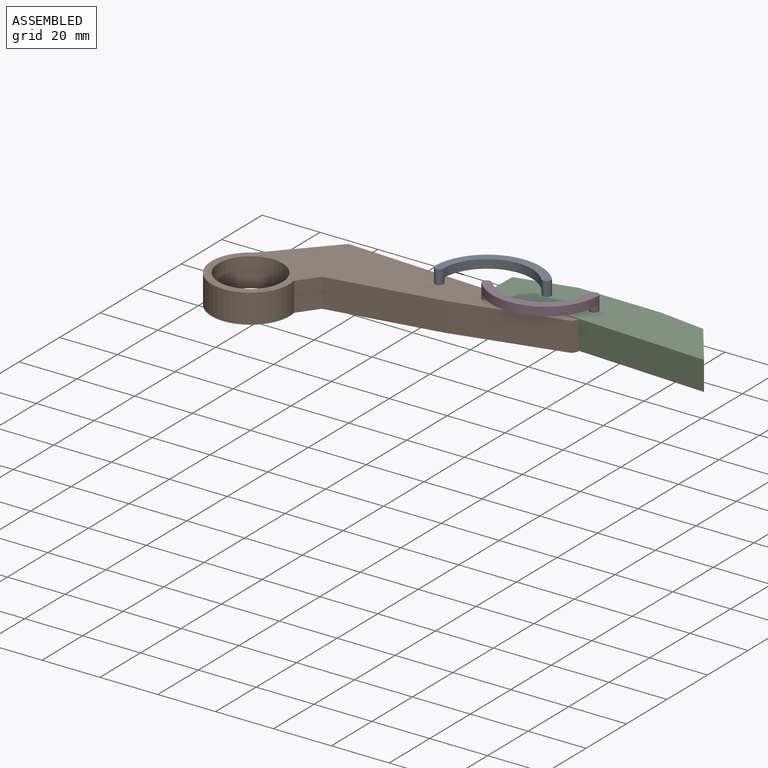
[diagram: assembled view]
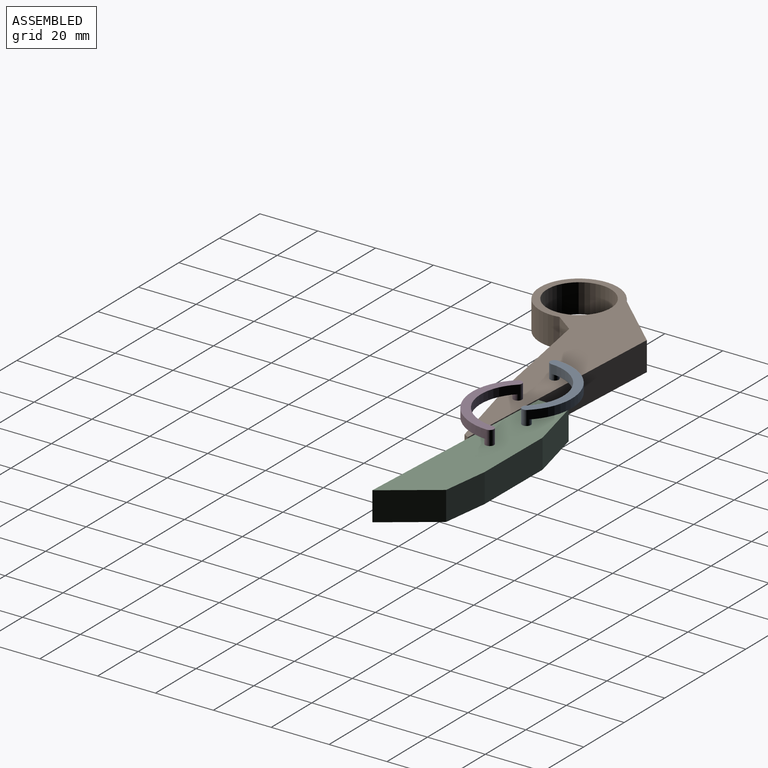
[diagram: assembled view, second angle]
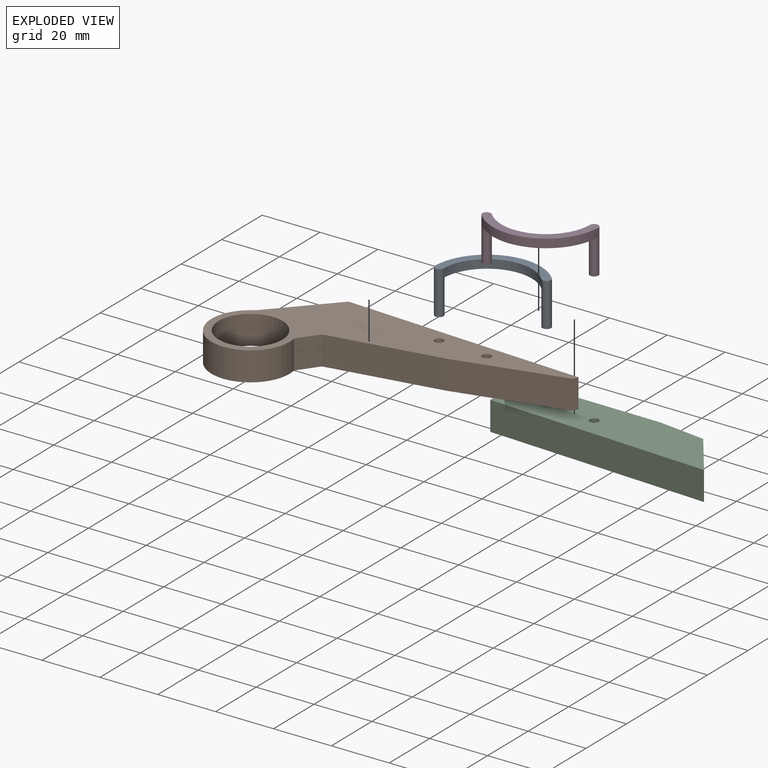
[diagram: exploded view]
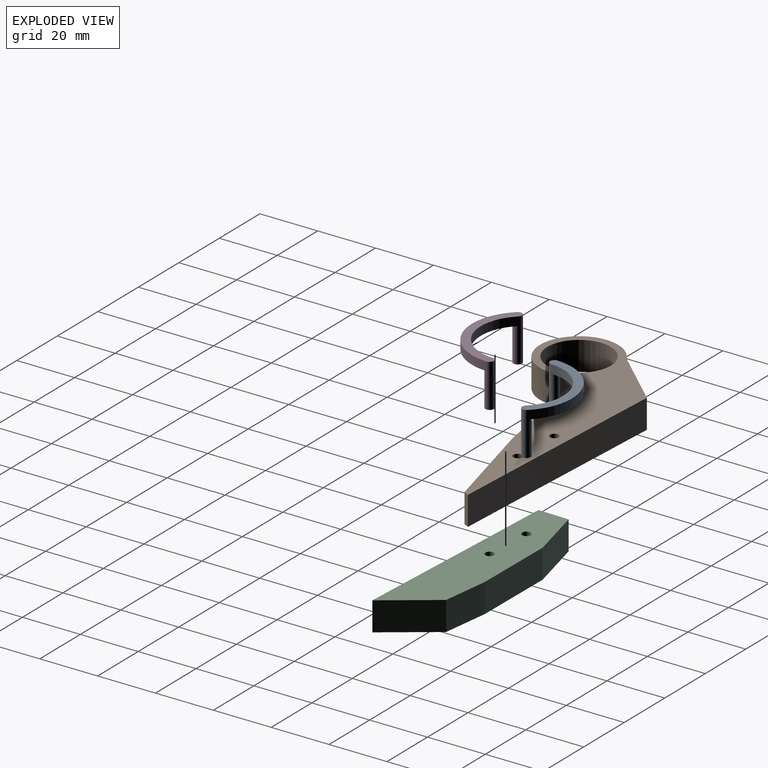
[diagram: exploded view, second angle]
ASSEMBLY  parts=4 mates=4
PART A: 8 faces, bbox 31.1x21.3x15 mm
  f0: cylinder r=1.5mm len=15mm, axis (0,0,-1), area 127.2mm2, adj f1,f3,f4,f5,f6
  f1: cylinder r=18.5mm len=30.63mm, axis (0,0,-1), area 131.2mm2, adj f0,f2,f4,f5
  f2: cylinder r=1.5mm len=15mm, axis (0,0,-1), area 127.2mm2, adj f1,f3,f4,f5,f7
  f3: cylinder r=15.5mm len=25.67mm, axis (0,0,-1), area 109.9mm2, adj f0,f2,f4,f5
  f4: plane 31.15x21.33mm, normal (0,0,1), area 127.6mm2, adj f0,f1,f2,f3
  f5: plane 30.63x19.95mm, normal (0,0,-1), area 113.5mm2, adj f0,f1,f2,f3
  f6: plane 3x3mm, normal (0,0,-1), area 7.1mm2, adj f0
  f7: plane 3x3mm, normal (0,0,-1), area 7.1mm2, adj f2
PART B: 13 faces, bbox 103.4x52.7x10 mm
  f0: plane 35.36x14.03mm, normal (0.37,-0.93,0), area 380.4mm2, adj f1,f8,f11,f12
  f1: cylinder r=18.5mm len=10mm, axis (0,0,1), area 21.4mm2, adj f0,f2,f11,f12
  f2: plane 31.7x10mm, normal (-0.08,1,0), area 318mm2, adj f1,f3,f11,f12
  f3: plane 50.53x10mm, normal (-0.08,1,0), area 506.7mm2, adj f2,f4,f11,f12
  f4: plane 21.99x15.58mm, normal (-0.82,0.58,0), area 269.5mm2, adj f3,f5,f11,f12
  f5: cylinder r=13.5mm len=27mm, axis (0,0,1), area 594.3mm2, adj f4,f6,f11,f12
  f6: plane 10x7.32mm, normal (0.88,-0.48,0), area 83.6mm2, adj f5,f8,f11,f12
  f7: cylinder r=1.5mm len=10mm, axis (0,0,1), area 94.2mm2, adj f11,f12
  f8: plane 36.86x11.63mm, normal (0.3,-0.95,0), area 386.6mm2, adj f0,f6,f11,f12
  f9: cylinder r=1.5mm len=10mm, axis (0,0,1), area 94.2mm2, adj f11,f12
  f10: cylinder r=11mm len=22mm, axis (0,0,1), area 691.2mm2, adj f11,f12
  f11: plane 103.37x52.71mm, normal (0,0,-1), area 1470.3mm2, adj f0,f1,f2,f3,f4,f5,f6,f7
  f12: plane 103.37x52.71mm, normal (0,0,1), area 1470.3mm2, adj f0,f1,f2,f3,f4,f5,f6,f7
PART C: 11 faces, bbox 77.5x21.2x10 mm
  f0: plane 18.96x10mm, normal (-0.36,0.93,0), area 203.3mm2, adj f1,f7,f9,f10
  f1: plane 10.53x10mm, normal (-0.99,-0.1,0), area 105.9mm2, adj f0,f2,f9,f10
  f2: plane 36.99x10mm, normal (0.08,-1,0), area 371mm2, adj f1,f3,f9,f10
  f3: plane 39.44x10mm, normal (0.08,-1,0), area 395.6mm2, adj f2,f4,f9,f10
  f4: plane 15.29x14.23mm, normal (0.73,0.68,0), area 208.8mm2, adj f3,f5,f9,f10
  f5: plane 16.27x10mm, normal (0,1,0), area 162.7mm2, adj f4,f7,f9,f10
  f6: cylinder r=1.5mm len=10mm, axis (0,0,1), area 94.2mm2, adj f9,f10
  f7: plane 28.05x10mm, normal (-0.12,0.99,0), area 282.6mm2, adj f0,f5,f9,f10
  f8: cylinder r=1.5mm len=10mm, axis (0,0,1), area 94.2mm2, adj f9,f10
  f9: plane 77.51x21.23mm, normal (0,0,-1), area 1108.4mm2, adj f0,f1,f2,f3,f4,f5,f6,f7
  f10: plane 77.51x21.23mm, normal (0,0,1), area 1108.4mm2, adj f0,f1,f2,f3,f4,f5,f6,f7
PART D: 8 faces, bbox 31.1x21.3x15 mm
  f0: cylinder r=1.5mm len=15mm, axis (0,0,1), area 127.2mm2, adj f1,f4,f5,f6,f7
  f1: plane 3x3mm, normal (0,0,-1), area 7.1mm2, adj f0
  f2: cylinder r=1.5mm len=15mm, axis (0,0,1), area 127.2mm2, adj f3,f4,f5,f6,f7
  f3: plane 3x3mm, normal (0,0,-1), area 7.1mm2, adj f2
  f4: cylinder r=15.5mm len=25.67mm, axis (0,0,-1), area 109.9mm2, adj f0,f2,f6,f7
  f5: cylinder r=18.5mm len=30.63mm, axis (0,0,-1), area 131.2mm2, adj f0,f2,f6,f7
  f6: plane 31.15x21.33mm, normal (0,0,1), area 127.6mm2, adj f0,f2,f4,f5
  f7: plane 30.63x19.95mm, normal (0,0,-1), area 113.5mm2, adj f0,f2,f4,f5
PLACE A rot(axis=(0,0,-1),6.4deg) t=(44.78,29.23,-14.11)mm
PLACE B rot(axis=(0,0,-1),7.3deg) t=(44.78,29.23,-16.11)mm fixed
PLACE C rot(axis=(0,0,-1),7.3deg) t=(44.6,29.71,-16.11)mm
PLACE D rot(axis=(0,0,-1),6.4deg) t=(44.77,28.95,-14.11)mm
MATE revolute B.f7 <-> D.f2  axis (0,0,1) through (61.76,28.39,-26.11)mm
MATE revolute A.f2 <-> B.f9  axis (0,0,-1) through (44.78,29.23,-26.11)mm
MATE revolute A.f0 <-> C.f8  axis (0,0,-1) through (74.27,40.19,-26.11)mm
MATE revolute D.f0 <-> C.f6  axis (0,0,-1) through (91.25,39.35,-26.11)mm
